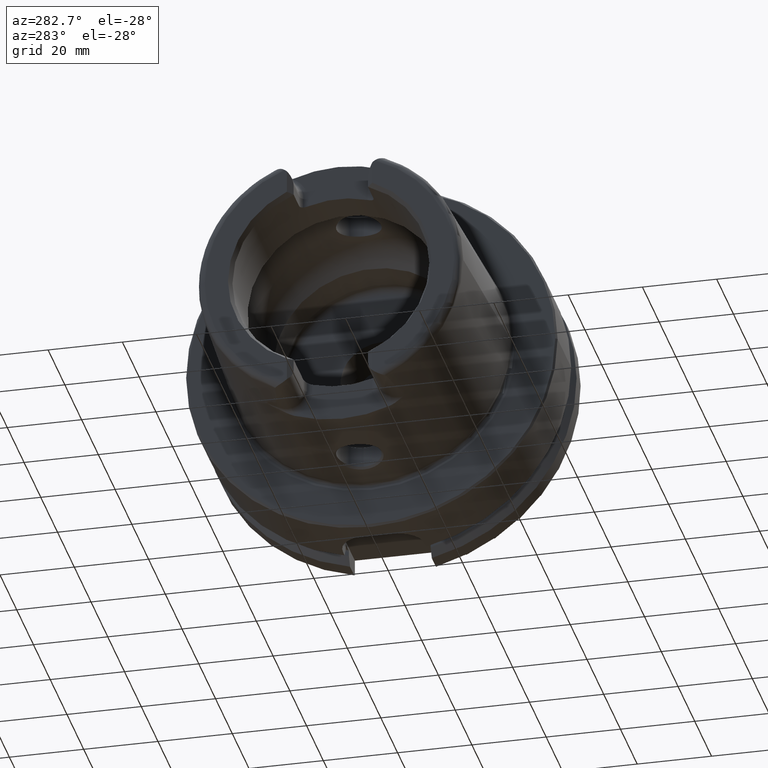
[diagram: clean part render]
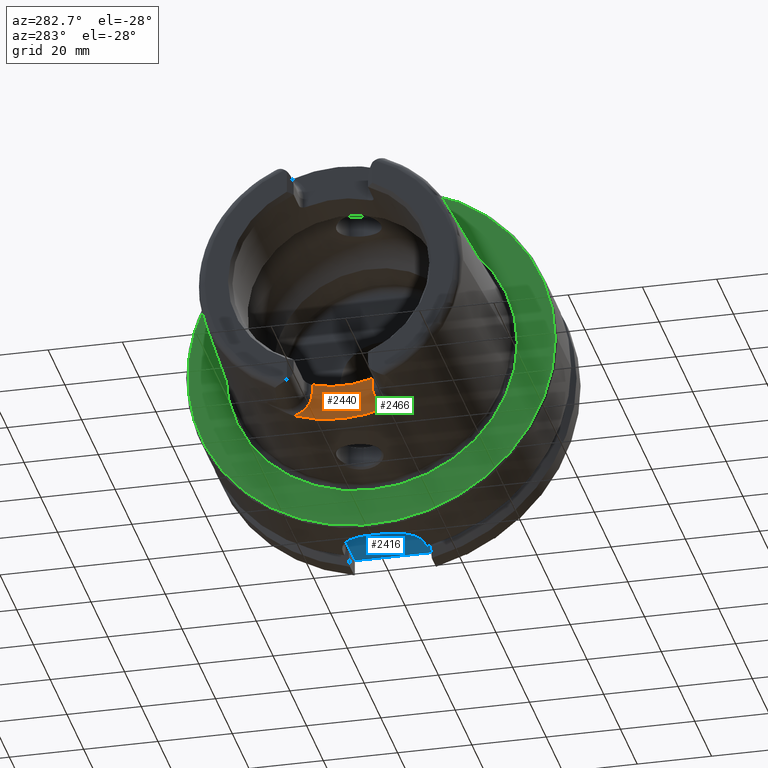
[diagram: same view with three faces highlighted in distinct colors, each labeled with its STEP entity id]
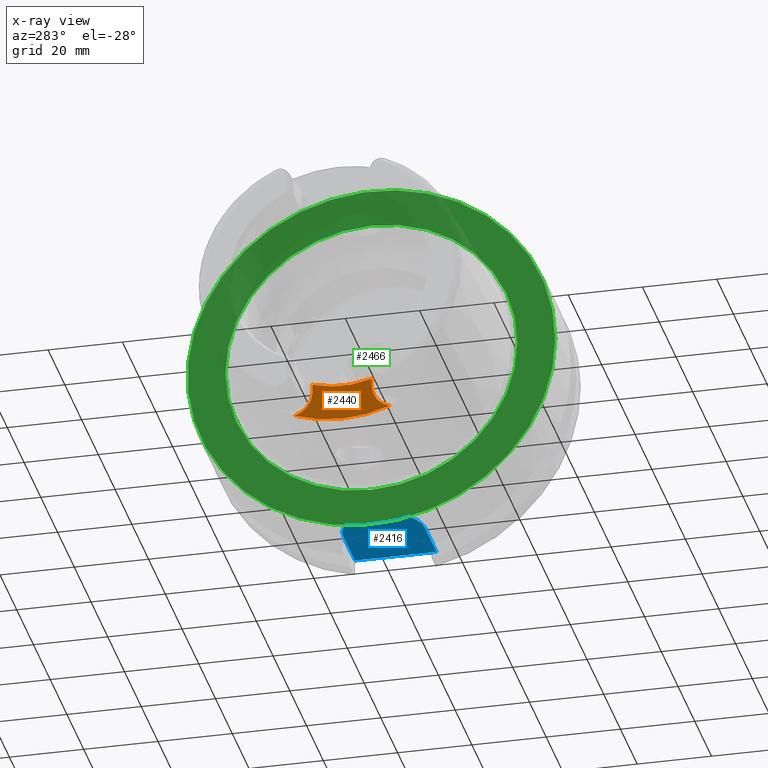
[diagram: x-ray of the same camera — body ghosted, the three highlighted faces saturated]
A machine part, auxiliary view with three faces highlighted in distinct colors.
The next image is the same camera in x-ray (body ghosted, the three faces saturated) — at least one of them is partly hidden behind the body in this view.
Their STEP definitions:

[orange] entity #2440 — the highlighted planar face has unit normal (-1, 0, 0).
#162=CIRCLE('',#2620,36.25399498998);
#213=CIRCLE('',#2717,6.88);
#216=CIRCLE('',#2724,26.5);
#217=CIRCLE('',#2725,6.88);
#286=PLANE('',#2723);
#397=FACE_OUTER_BOUND('',#550,.T.);
#550=EDGE_LOOP('',(#2120,#2121,#2122,#2123,#2124,#2125));
#773=LINE('',#5336,#895);
#776=LINE('',#5348,#898);
#895=VECTOR('',#3343,10.);
#898=VECTOR('',#3358,10.);
#1043=VERTEX_POINT('',#4412);
#1044=VERTEX_POINT('',#4423);
#1145=VERTEX_POINT('',#5320);
#1147=VERTEX_POINT('',#5325);
#1149=VERTEX_POINT('',#5345);
#1150=VERTEX_POINT('',#5347);
#1331=EDGE_CURVE('',#1043,#1044,#162,.T.);
#1485=EDGE_CURVE('',#1145,#1043,#213,.T.);
#1487=EDGE_CURVE('',#1147,#1145,#773,.T.);
#1492=EDGE_CURVE('',#1149,#1147,#216,.T.);
#1493=EDGE_CURVE('',#1150,#1149,#776,.T.);
#1494=EDGE_CURVE('',#1044,#1150,#217,.T.);
#2120=ORIENTED_EDGE('',*,*,#1485,.F.);
#2121=ORIENTED_EDGE('',*,*,#1487,.F.);
#2122=ORIENTED_EDGE('',*,*,#1492,.F.);
#2123=ORIENTED_EDGE('',*,*,#1493,.F.);
#2124=ORIENTED_EDGE('',*,*,#1494,.F.);
#2125=ORIENTED_EDGE('',*,*,#1331,.F.);
#2440=ADVANCED_FACE('',(#397),#286,.T.);
#2620=AXIS2_PLACEMENT_3D('',#4424,#3094,#3095);
#2717=AXIS2_PLACEMENT_3D('',#5322,#3339,#3340);
#2723=AXIS2_PLACEMENT_3D('',#5344,#3354,#3355);
#2724=AXIS2_PLACEMENT_3D('',#5346,#3356,#3357);
#2725=AXIS2_PLACEMENT_3D('',#5349,#3359,#3360);
#3094=DIRECTION('center_axis',(1.,0.,0.));
#3095=DIRECTION('ref_axis',(0.,1.,0.));
#3339=DIRECTION('center_axis',(-1.,0.,0.));
#3340=DIRECTION('ref_axis',(0.,0.510937901715381,-0.8596176246394));
#3343=DIRECTION('',(0.,0.,-1.));
#3354=DIRECTION('center_axis',(-1.,0.,0.));
#3355=DIRECTION('ref_axis',(0.,0.,1.));
#3356=DIRECTION('center_axis',(-1.,0.,0.));
#3357=DIRECTION('ref_axis',(0.,1.,0.));
#3358=DIRECTION('',(0.,0.,1.));
#3359=DIRECTION('center_axis',(-1.,0.,0.));
#3360=DIRECTION('ref_axis',(0.,-0.510937901715381,-0.8596176246394));
#4412=CARTESIAN_POINT('',(-35.,-12.7918651267415,-33.9222690767105));
#4423=CARTESIAN_POINT('',(-35.,12.7918651267415,-33.9222690767105));
#4424=CARTESIAN_POINT('Origin',(-35.,0.,0.));
#5320=CARTESIAN_POINT('',(-35.,-8.01,-27.37));
#5322=CARTESIAN_POINT('Origin',(-35.,-14.89,-27.37));
#5325=CARTESIAN_POINT('',(-35.,-8.01,-25.2604414054862));
#5336=CARTESIAN_POINT('',(-35.,-8.01,-28.685));
#5344=CARTESIAN_POINT('Origin',(-35.,8.88178419700125E-15,-30.));
#5345=CARTESIAN_POINT('',(-35.,8.01,-25.2604414054862));
#5346=CARTESIAN_POINT('Origin',(-35.,0.,0.));
#5347=CARTESIAN_POINT('',(-35.,8.01,-27.37));
#5348=CARTESIAN_POINT('',(-35.,8.01,-25.));
#5349=CARTESIAN_POINT('Origin',(-35.,14.89,-27.37));

[blue] entity #2416 — the highlighted planar face has unit normal (0, 0, 1).
#193=CIRCLE('',#2673,10.);
#194=CIRCLE('',#2676,10.);
#280=PLANE('',#2678);
#373=FACE_OUTER_BOUND('',#526,.T.);
#526=EDGE_LOOP('',(#2005,#2006,#2007,#2008,#2009,#2010));
#691=LINE('',#3944,#813);
#748=LINE('',#5099,#870);
#760=LINE('',#5193,#882);
#762=LINE('',#5199,#884);
#813=VECTOR('',#2967,10.);
#870=VECTOR('',#3224,10.);
#882=VECTOR('',#3242,10.);
#884=VECTOR('',#3250,10.);
#981=VERTEX_POINT('',#3941);
#982=VERTEX_POINT('',#3943);
#1110=VERTEX_POINT('',#5098);
#1118=VERTEX_POINT('',#5139);
#1119=VERTEX_POINT('',#5141);
#1128=VERTEX_POINT('',#5195);
#1255=EDGE_CURVE('',#981,#982,#691,.T.);
#1424=EDGE_CURVE('',#982,#1110,#748,.T.);
#1435=EDGE_CURVE('',#1118,#1119,#193,.T.);
#1446=EDGE_CURVE('',#1119,#981,#760,.T.);
#1447=EDGE_CURVE('',#1110,#1128,#194,.T.);
#1449=EDGE_CURVE('',#1128,#1118,#762,.T.);
#2005=ORIENTED_EDGE('',*,*,#1449,.F.);
#2006=ORIENTED_EDGE('',*,*,#1447,.F.);
#2007=ORIENTED_EDGE('',*,*,#1424,.F.);
#2008=ORIENTED_EDGE('',*,*,#1255,.F.);
#2009=ORIENTED_EDGE('',*,*,#1446,.F.);
#2010=ORIENTED_EDGE('',*,*,#1435,.F.);
#2416=ADVANCED_FACE('',(#373),#280,.F.);
#2673=AXIS2_PLACEMENT_3D('',#5142,#3233,#3234);
#2676=AXIS2_PLACEMENT_3D('',#5196,#3245,#3246);
#2678=AXIS2_PLACEMENT_3D('',#5200,#3251,#3252);
#2967=DIRECTION('',(0.,1.,0.));
#3224=DIRECTION('',(-1.,-1.58603289232165E-16,0.));
#3233=DIRECTION('center_axis',(0.,0.,1.));
#3234=DIRECTION('ref_axis',(-1.,-2.4980018054066E-16,0.));
#3242=DIRECTION('',(1.,1.58603289232165E-16,0.));
#3245=DIRECTION('center_axis',(0.,0.,1.));
#3246=DIRECTION('ref_axis',(-2.22044604925031E-16,1.,0.));
#3250=DIRECTION('',(0.,-1.,0.));
#3251=DIRECTION('center_axis',(0.,0.,1.));
#3252=DIRECTION('ref_axis',(1.,0.,0.));
#3941=CARTESIAN_POINT('',(29.,-11.,-44.));
#3943=CARTESIAN_POINT('',(29.,11.,-44.));
#3944=CARTESIAN_POINT('',(29.,-5.55111512312578E-16,-44.));
#5098=CARTESIAN_POINT('',(15.,11.,-44.));
#5099=CARTESIAN_POINT('',(29.,11.,-44.));
#5139=CARTESIAN_POINT('',(4.99999999999999,-1.00000000000001,-44.));
#5141=CARTESIAN_POINT('',(15.,-11.,-44.));
#5142=CARTESIAN_POINT('Origin',(15.,-1.,-44.));
#5193=CARTESIAN_POINT('',(15.,-11.,-44.));
#5195=CARTESIAN_POINT('',(4.99999999999999,0.999999999999997,-44.));
#5196=CARTESIAN_POINT('Origin',(15.,1.,-44.));
#5199=CARTESIAN_POINT('',(4.99999999999999,0.999999999999997,-44.));
#5200=CARTESIAN_POINT('Origin',(17.,-1.11022302462516E-15,-44.));

[green] entity #2466 — the highlighted planar face has unit normal (-1, 0, 0).
#100=FACE_BOUND('',#580,.T.);
#243=CIRCLE('',#2776,39.2747800249997);
#244=CIRCLE('',#2778,49.5);
#295=PLANE('',#2777);
#423=FACE_OUTER_BOUND('',#579,.T.);
#579=EDGE_LOOP('',(#2249));
#580=EDGE_LOOP('',(#2250));
#1166=VERTEX_POINT('',#5446);
#1167=VERTEX_POINT('',#5450);
#1532=EDGE_CURVE('',#1166,#1166,#243,.T.);
#1533=EDGE_CURVE('',#1167,#1167,#244,.T.);
#2249=ORIENTED_EDGE('',*,*,#1533,.F.);
#2250=ORIENTED_EDGE('',*,*,#1532,.T.);
#2466=ADVANCED_FACE('',(#423,#100),#295,.T.);
#2776=AXIS2_PLACEMENT_3D('',#5448,#3471,#3472);
#2777=AXIS2_PLACEMENT_3D('',#5449,#3473,#3474);
#2778=AXIS2_PLACEMENT_3D('',#5451,#3475,#3476);
#3471=DIRECTION('center_axis',(1.,0.,0.));
#3472=DIRECTION('ref_axis',(0.,0.,-1.));
#3473=DIRECTION('center_axis',(-1.,0.,0.));
#3474=DIRECTION('ref_axis',(0.,0.,1.));
#3475=DIRECTION('center_axis',(1.,0.,0.));
#3476=DIRECTION('ref_axis',(0.,0.,-1.));
#5446=CARTESIAN_POINT('',(-1.04950770296597E-15,-39.2747800249997,-4.80977336448322E-15));
#5448=CARTESIAN_POINT('Origin',(0.,0.,0.));
#5449=CARTESIAN_POINT('Origin',(0.,49.5,0.));
#5450=CARTESIAN_POINT('',(1.28369537222284E-15,-49.5,-6.0620016557794E-15));
#5451=CARTESIAN_POINT('Origin',(0.,0.,0.));